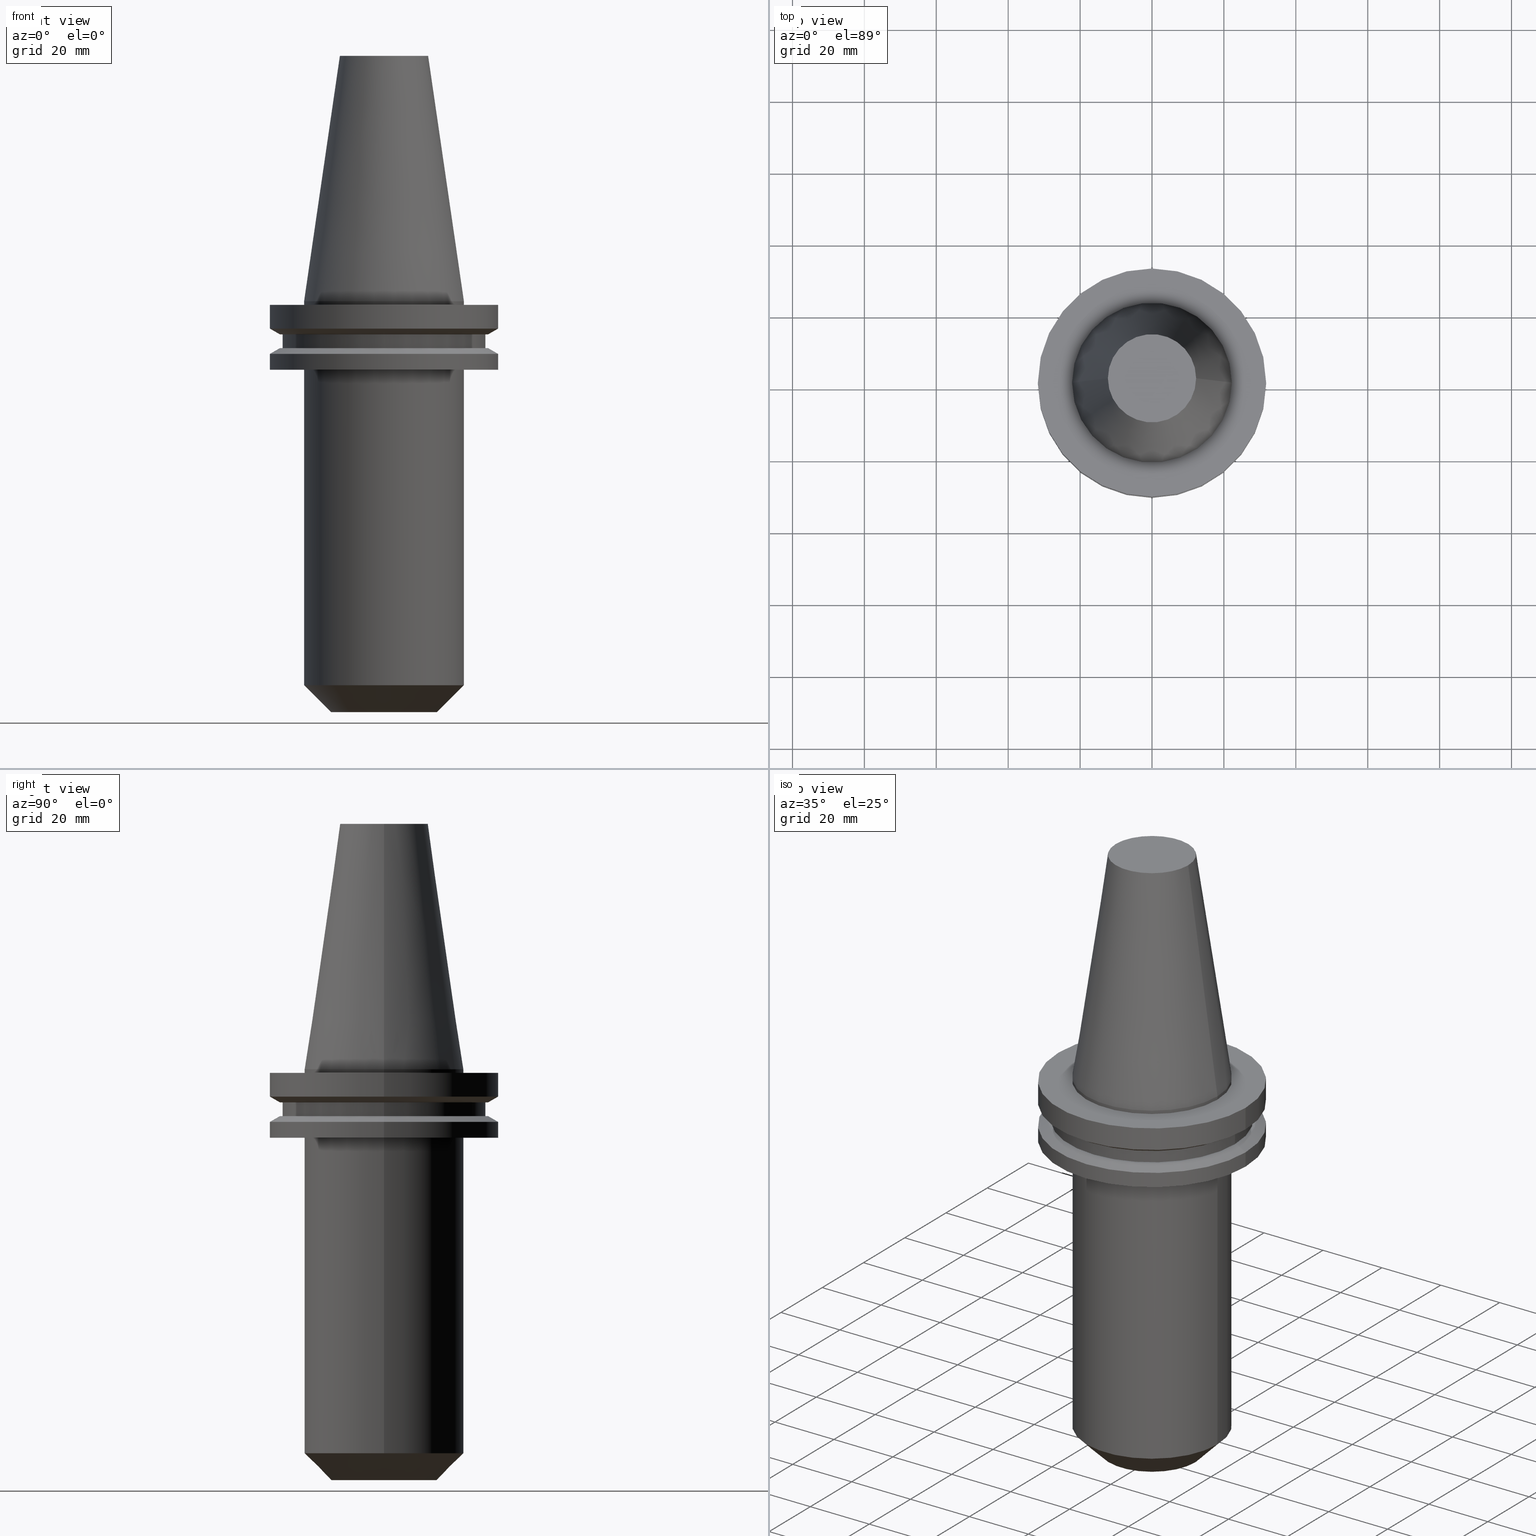
[diagram: canonical four-view strip — front | top / right | iso, engineering-drawing reading convention]
A machine part, canonical four-view strip (front | top / right | iso — engineering-drawing reading convention). The complete STEP part file that produces these views, byte-faithful:
ISO-10303-21;
HEADER;
FILE_DESCRIPTION (( 'STEP AP203' ),
    '1' );
FILE_NAME ('BCV40-EM_750-4_5.STEP',
    '2022-02-23T14:49:50',
    ( '' ),
    ( '' ),
    'SwSTEP 2.0',
    'SolidWorks 2021',
    '' );
FILE_SCHEMA (( 'CONFIG_CONTROL_DESIGN' ));
ENDSEC;

DATA;
#1 = AXIS2_PLACEMENT_3D ( 'NONE', #332, #454, #138 ) ;
#2 = SECURITY_CLASSIFICATION ( '', '', #561 ) ;
#3 = CYLINDRICAL_SURFACE ( 'NONE', #145, 22.22500000000000142 ) ;
#4 = CIRCLE ( 'NONE', #27, 22.22500000000000142 ) ;
#5 = ORIENTED_EDGE ( 'NONE', *, *, #616, .T. ) ;
#6 = APPLICATION_CONTEXT ( 'configuration controlled 3d designs of mechanical parts and assemblies' ) ;
#7 = DIRECTION ( 'NONE',  ( 1.000000000000000000, 0.000000000000000000, 0.000000000000000000 ) ) ;
#8 = FACE_OUTER_BOUND ( 'NONE', #426, .T. ) ;
#9 = CYLINDRICAL_SURFACE ( 'NONE', #76, 22.22500000000000142 ) ;
#10 = CARTESIAN_POINT ( 'NONE',  ( -28.97919780457008088, 0.000000000000000000, -13.05499999999999794 ) ) ;
#11 = ADVANCED_FACE ( 'NONE', ( #686 ), #313, .T. ) ;
#12 = AXIS2_PLACEMENT_3D ( 'NONE', #334, #672, #137 ) ;
#13 = AXIS2_PLACEMENT_3D ( 'NONE', #687, #151, #218 ) ;
#14 = ADVANCED_FACE ( 'NONE', ( #627 ), #3, .T. ) ;
#15 = VECTOR ( 'NONE', #458, 1000.000000000000000 ) ;
#16 = DIRECTION ( 'NONE',  ( -0.000000000000000000, -0.000000000000000000, 1.000000000000000000 ) ) ;
#17 = CARTESIAN_POINT ( 'NONE',  ( 0.000000000000000000, 0.000000000000000000, -35.04999999999999716 ) ) ;
#18 = CARTESIAN_POINT ( 'NONE',  ( 0.000000000000000000, 0.000000000000000000, 68.25000000000000000 ) ) ;
#19 = DIRECTION ( 'NONE',  ( 1.000000000000000000, 0.000000000000000000, 0.000000000000000000 ) ) ;
#20 = DIRECTION ( 'NONE',  ( 0.8660254037844387076, 1.060575238724906915E-16, -0.4999999999999998890 ) ) ;
#21 = DIRECTION ( 'NONE',  ( 0.000000000000000000, 0.000000000000000000, -1.000000000000000000 ) ) ;
#22 = ORIENTED_EDGE ( 'NONE', *, *, #262, .T. ) ;
#23 = VECTOR ( 'NONE', #459, 999.9999999999998863 ) ;
#24 = DIRECTION ( 'NONE',  ( -0.000000000000000000, -0.000000000000000000, 1.000000000000000000 ) ) ;
#25 = ORIENTED_EDGE ( 'NONE', *, *, #202, .T. ) ;
#26 = CYLINDRICAL_SURFACE ( 'NONE', #479, 9.525000000000002132 ) ;
#27 = AXIS2_PLACEMENT_3D ( 'NONE', #139, #378, #729 ) ;
#28 = PERSON_AND_ORGANIZATION_ROLE ( 'classification_officer' ) ;
#29 = CARTESIAN_POINT ( 'NONE',  ( 0.000000000000000000, 0.000000000000000000, -7.605276606597335842 ) ) ;
#30 = ORIENTED_EDGE ( 'NONE', *, *, #221, .F. ) ;
#31 = CARTESIAN_POINT ( 'NONE',  ( -31.75000000000000000, 3.888253587292846476E-15, -1.000000000000000888 ) ) ;
#32 = ORIENTED_EDGE ( 'NONE', *, *, #260, .F. ) ;
#33 = DIRECTION ( 'NONE',  ( 0.000000000000000000, 0.000000000000000000, -1.000000000000000000 ) ) ;
#34 = EDGE_CURVE ( 'NONE', #694, #284, #198, .T. ) ;
#35 = LINE ( 'NONE', #599, #562 ) ;
#36 = AXIS2_PLACEMENT_3D ( 'NONE', #29, #693, #160 ) ;
#37 = ORIENTED_EDGE ( 'NONE', *, *, #290, .F. ) ;
#38 = LOCAL_TIME ( 8, 49, 50.00000000000000000, #211 ) ;
#39 = DIRECTION ( 'NONE',  ( -0.000000000000000000, -0.000000000000000000, 1.000000000000000000 ) ) ;
#40 = VECTOR ( 'NONE', #742, 1000.000000000000000 ) ;
#41 = DIRECTION ( 'NONE',  ( -0.000000000000000000, -0.000000000000000000, 1.000000000000000000 ) ) ;
#42 = ORIENTED_EDGE ( 'NONE', *, *, #70, .F. ) ;
#43 = DIRECTION ( 'NONE',  ( -0.000000000000000000, -0.000000000000000000, 1.000000000000000000 ) ) ;
#44 = PLANE ( 'NONE',  #514 ) ;
#45 = CARTESIAN_POINT ( 'NONE',  ( 0.000000000000000000, 0.000000000000000000, -13.05499999999999794 ) ) ;
#46 = CARTESIAN_POINT ( 'NONE',  ( 0.000000000000000000, 0.000000000000000000, -13.05499999999999794 ) ) ;
#47 = ORIENTED_EDGE ( 'NONE', *, *, #646, .T. ) ;
#48 = ORIENTED_EDGE ( 'NONE', *, *, #194, .T. ) ;
#49 = CARTESIAN_POINT ( 'NONE',  ( 22.22500000000000142, 0.000000000000000000, 68.25000000000000000 ) ) ;
#50 = CARTESIAN_POINT ( 'NONE',  ( 14.72499999999998721, 0.000000000000000000, -114.2999999999999829 ) ) ;
#51 = CARTESIAN_POINT ( 'NONE',  ( 9.525000000000002132, 0.000000000000000000, 0.000000000000000000 ) ) ;
#52 = CARTESIAN_POINT ( 'NONE',  ( 0.000000000000000000, 0.000000000000000000, 0.000000000000000000 ) ) ;
#53 = ORIENTED_EDGE ( 'NONE', *, *, #725, .F. ) ;
#54 = DIRECTION ( 'NONE',  ( 1.000000000000000000, 0.000000000000000000, 0.000000000000000000 ) ) ;
#55 = CIRCLE ( 'NONE', #461, 12.27178102086201150 ) ;
#56 = CIRCLE ( 'NONE', #754, 28.17999999999999972 ) ;
#57 = VERTEX_POINT ( 'NONE', #84 ) ;
#58 = PLANE ( 'NONE',  #665 ) ;
#59 = ADVANCED_FACE ( 'NONE', ( #570 ), #429, .T. ) ;
#60 = EDGE_LOOP ( 'NONE', ( #506, #487, #392, #30 ) ) ;
#61 = ORIENTED_EDGE ( 'NONE', *, *, #495, .T. ) ;
#62 = CARTESIAN_POINT ( 'NONE',  ( -22.22500000000000142, 0.000000000000000000, 0.000000000000000000 ) ) ;
#63 = VERTEX_POINT ( 'NONE', #379 ) ;
#64 = ORIENTED_EDGE ( 'NONE', *, *, #65, .T. ) ;
#65 = EDGE_CURVE ( 'NONE', #248, #524, #175, .T. ) ;
#66 = VECTOR ( 'NONE', #85, 1000.000000000000000 ) ;
#67 = PLANE ( 'NONE',  #751 ) ;
#68 = EDGE_CURVE ( 'NONE', #515, #147, #80, .T. ) ;
#69 = CYLINDRICAL_SURFACE ( 'NONE', #722, 31.75000000000000000 ) ;
#70 = EDGE_CURVE ( 'NONE', #412, #685, #696, .T. ) ;
#71 = DIRECTION ( 'NONE',  ( 1.000000000000000000, 0.000000000000000000, 0.000000000000000000 ) ) ;
#72 = EDGE_CURVE ( 'NONE', #284, #694, #766, .T. ) ;
#73 = FACE_BOUND ( 'NONE', #704, .T. ) ;
#74 = FACE_OUTER_BOUND ( 'NONE', #234, .T. ) ;
#75 = DIRECTION ( 'NONE',  ( -0.000000000000000000, -0.000000000000000000, 1.000000000000000000 ) ) ;
#76 = AXIS2_PLACEMENT_3D ( 'NONE', #558, #626, #324 ) ;
#77 = PERSON_AND_ORGANIZATION ( #576, #291 ) ;
#78 = AXIS2_PLACEMENT_3D ( 'NONE', #149, #204, #718 ) ;
#79 = DIRECTION ( 'NONE',  ( 1.000000000000000000, 0.000000000000000000, 0.000000000000000000 ) ) ;
#80 = LINE ( 'NONE', #330, #633 ) ;
#81 = COORDINATED_UNIVERSAL_TIME_OFFSET ( 6, 0, .BEHIND. ) ;
#82 = DIRECTION ( 'NONE',  ( -0.000000000000000000, -0.000000000000000000, 1.000000000000000000 ) ) ;
#83 = EDGE_LOOP ( 'NONE', ( #359, #123 ) ) ;
#84 = CARTESIAN_POINT ( 'NONE',  ( -28.17999999999999972, 3.451054679997241634E-15, -9.204999999999991189 ) ) ;
#85 = DIRECTION ( 'NONE',  ( -0.000000000000000000, -0.000000000000000000, 1.000000000000000000 ) ) ;
#86 = EDGE_LOOP ( 'NONE', ( #117, #484 ) ) ;
#87 = MECHANICAL_CONTEXT ( 'NONE', #6, 'mechanical' ) ;
#88 = CIRCLE ( 'NONE', #1, 31.75000000000000000 ) ;
#89 = CARTESIAN_POINT ( 'NONE',  ( 22.22500000000000142, 2.721777511104992849E-15, 0.000000000000000000 ) ) ;
#90 = LOCAL_TIME ( 8, 49, 50.00000000000000000, #201 ) ;
#91 = EDGE_LOOP ( 'NONE', ( #716, #518 ) ) ;
#92 = DIRECTION ( 'NONE',  ( 1.000000000000000000, 0.000000000000000000, 0.000000000000000000 ) ) ;
#93 = DIRECTION ( 'NONE',  ( 1.000000000000000000, 0.000000000000000000, 0.000000000000000000 ) ) ;
#94 = CARTESIAN_POINT ( 'NONE',  ( -31.75000000000000000, 3.888253587292846476E-15, -14.65472339340266572 ) ) ;
#95 = CARTESIAN_POINT ( 'NONE',  ( -28.97919780457007732, 3.718590885307660666E-15, -9.205000000000005400 ) ) ;
#96 = CARTESIAN_POINT ( 'NONE',  ( 28.17999999999999972, 0.000000000000000000, -9.204999999999991189 ) ) ;
#97 = CYLINDRICAL_SURFACE ( 'NONE', #237, 28.17999999999999972 ) ;
#98 = VERTEX_POINT ( 'NONE', #348 ) ;
#99 = APPROVAL ( #519, 'UNSPECIFIED' ) ;
#100 = FACE_OUTER_BOUND ( 'NONE', #186, .T. ) ;
#101 = CARTESIAN_POINT ( 'NONE',  ( 22.22500000000000142, 2.721777511104992849E-15, 0.000000000000000000 ) ) ;
#102 = CARTESIAN_POINT ( 'NONE',  ( 0.000000000000000000, 0.000000000000000000, -106.8000000000000114 ) ) ;
#103 = AXIS2_PLACEMENT_3D ( 'NONE', #45, #608, #546 ) ;
#104 = LOCAL_TIME ( 8, 49, 50.00000000000000000, #739 ) ;
#105 = VERTEX_POINT ( 'NONE', #588 ) ;
#106 = ORIENTED_EDGE ( 'NONE', *, *, #262, .F. ) ;
#107 = DIRECTION ( 'NONE',  ( 1.000000000000000000, 0.000000000000000000, 0.000000000000000000 ) ) ;
#108 = DIRECTION ( 'NONE',  ( 1.000000000000000000, 0.000000000000000000, 0.000000000000000000 ) ) ;
#109 = EDGE_CURVE ( 'NONE', #524, #248, #530, .T. ) ;
#110 = DIRECTION ( 'NONE',  ( 0.000000000000000000, -0.000000000000000000, 1.000000000000000000 ) ) ;
#111 = APPLICATION_CONTEXT ( 'configuration controlled 3d designs of mechanical parts and assemblies' ) ;
#112 = VERTEX_POINT ( 'NONE', #373 ) ;
#113 = ORIENTED_EDGE ( 'NONE', *, *, #380, .T. ) ;
#114 = CARTESIAN_POINT ( 'NONE',  ( 0.000000000000000000, 31.74999999999999289, -19.04999999999999716 ) ) ;
#115 = ADVANCED_FACE ( 'NONE', ( #623 ), #69, .T. ) ;
#116 = CC_DESIGN_PERSON_AND_ORGANIZATION_ASSIGNMENT ( #629, #731, ( #465 ) ) ;
#117 = ORIENTED_EDGE ( 'NONE', *, *, #336, .F. ) ;
#118 = DIRECTION ( 'NONE',  ( -0.000000000000000000, -0.000000000000000000, 1.000000000000000000 ) ) ;
#119 = CIRCLE ( 'NONE', #713, 14.72499999999998721 ) ;
#120 = CONICAL_SURFACE ( 'NONE', #604, 14.72499999999998721, 0.7853981633974507215 ) ;
#121 = CIRCLE ( 'NONE', #446, 22.22500000000000142 ) ;
#122 = AXIS2_PLACEMENT_3D ( 'NONE', #467, #43, #294 ) ;
#123 = ORIENTED_EDGE ( 'NONE', *, *, #177, .F. ) ;
#124 = ORIENTED_EDGE ( 'NONE', *, *, #397, .F. ) ;
#125 = DIRECTION ( 'NONE',  ( 1.000000000000000000, 0.000000000000000000, 0.000000000000000000 ) ) ;
#126 = EDGE_CURVE ( 'NONE', #637, #181, #4, .T. ) ;
#127 = ORIENTED_EDGE ( 'NONE', *, *, #441, .F. ) ;
#128 = ORIENTED_EDGE ( 'NONE', *, *, #279, .T. ) ;
#129 =( LENGTH_UNIT ( ) NAMED_UNIT ( * ) SI_UNIT ( .MILLI., .METRE. ) );
#130 = CARTESIAN_POINT ( 'NONE',  ( -14.72499999999998721, 1.803292411744476082E-15, -114.2999999999999829 ) ) ;
#131 = AXIS2_PLACEMENT_3D ( 'NONE', #299, #606, #108 ) ;
#132 = CC_DESIGN_SECURITY_CLASSIFICATION ( #2, ( #491 ) ) ;
#133 = DIRECTION ( 'NONE',  ( -0.000000000000000000, -0.000000000000000000, 1.000000000000000000 ) ) ;
#134 = ADVANCED_FACE ( 'NONE', ( #74 ), #563, .T. ) ;
#135 = ADVANCED_FACE ( 'NONE', ( #384 ), #391, .F. ) ;
#136 = CARTESIAN_POINT ( 'NONE',  ( -28.17999999999999972, 3.451054679997241634E-15, 68.25000000000000000 ) ) ;
#137 = DIRECTION ( 'NONE',  ( 1.000000000000000000, 0.000000000000000000, 0.000000000000000000 ) ) ;
#138 = DIRECTION ( 'NONE',  ( 1.000000000000000000, 0.000000000000000000, 0.000000000000000000 ) ) ;
#139 = CARTESIAN_POINT ( 'NONE',  ( 0.000000000000000000, 0.000000000000000000, 0.000000000000000000 ) ) ;
#140 = ADVANCED_FACE ( 'NONE', ( #497 ), #26, .F. ) ;
#141 = DIRECTION ( 'NONE',  ( 1.000000000000000000, 0.000000000000000000, 0.000000000000000000 ) ) ;
#142 = CIRCLE ( 'NONE', #589, 28.17999999999999972 ) ;
#143 = LOCAL_TIME ( 8, 49, 50.00000000000000000, #81 ) ;
#144 = MANIFOLD_SOLID_BREP ( 'EM', #415 ) ;
#145 = AXIS2_PLACEMENT_3D ( 'NONE', #252, #496, #387 ) ;
#146 = CARTESIAN_POINT ( 'NONE',  ( 0.000000000000000000, 0.000000000000000000, 68.25000000000000000 ) ) ;
#147 = VERTEX_POINT ( 'NONE', #691 ) ;
#148 = DIRECTION ( 'NONE',  ( 0.000000000000000000, 0.000000000000000000, -1.000000000000000000 ) ) ;
#149 = CARTESIAN_POINT ( 'NONE',  ( 0.000000000000000000, 0.000000000000000000, -19.04999999999999716 ) ) ;
#150 = EDGE_CURVE ( 'NONE', #272, #368, #156, .T. ) ;
#151 = DIRECTION ( 'NONE',  ( -0.000000000000000000, -0.000000000000000000, 1.000000000000000000 ) ) ;
#152 = ORIENTED_EDGE ( 'NONE', *, *, #380, .F. ) ;
#153 = DIRECTION ( 'NONE',  ( 1.000000000000000000, 0.000000000000000000, 0.000000000000000000 ) ) ;
#154 = CARTESIAN_POINT ( 'NONE',  ( 0.000000000000000000, 0.000000000000000000, -9.205000000000005400 ) ) ;
#155 = VERTEX_POINT ( 'NONE', #95 ) ;
#156 = LINE ( 'NONE', #651, #40 ) ;
#157 = APPROVAL_STATUS ( 'not_yet_approved' ) ;
#158 = CIRCLE ( 'NONE', #513, 28.17999999999999972 ) ;
#159 = EDGE_CURVE ( 'NONE', #63, #637, #344, .T. ) ;
#160 = DIRECTION ( 'NONE',  ( 1.000000000000000000, 0.000000000000000000, 0.000000000000000000 ) ) ;
#161 = CONICAL_SURFACE ( 'NONE', #607, 22.22500000000000142, 0.1448138465474119174 ) ;
#162 = ADVANCED_FACE ( 'NONE', ( #100 ), #504, .T. ) ;
#163 = DIRECTION ( 'NONE',  ( -0.000000000000000000, -0.000000000000000000, 1.000000000000000000 ) ) ;
#164 = DIRECTION ( 'NONE',  ( -0.000000000000000000, -0.000000000000000000, 1.000000000000000000 ) ) ;
#165 = ORIENTED_EDGE ( 'NONE', *, *, #241, .F. ) ;
#166 = CARTESIAN_POINT ( 'NONE',  ( 9.525000000000002132, 0.000000000000000000, -35.04999999999999716 ) ) ;
#167 = ORIENTED_EDGE ( 'NONE', *, *, #203, .F. ) ;
#168 = CYLINDRICAL_SURFACE ( 'NONE', #131, 22.22500000000000142 ) ;
#169 = CARTESIAN_POINT ( 'NONE',  ( 0.000000000000000000, 0.000000000000000000, -35.04999999999999716 ) ) ;
#170 = ADVANCED_FACE ( 'NONE', ( #585 ), #161, .T. ) ;
#171 = ORIENTED_EDGE ( 'NONE', *, *, #397, .T. ) ;
#172 = CARTESIAN_POINT ( 'NONE',  ( 0.000000000000000000, 0.000000000000000000, -19.04999999999999716 ) ) ;
#173 = VECTOR ( 'NONE', #596, 1000.000000000000000 ) ;
#174 = AXIS2_PLACEMENT_3D ( 'NONE', #485, #490, #375 ) ;
#175 = CIRCLE ( 'NONE', #425, 9.525000000000002132 ) ;
#176 = ORIENTED_EDGE ( 'NONE', *, *, #159, .F. ) ;
#177 = EDGE_CURVE ( 'NONE', #661, #371, #56, .T. ) ;
#178 = CARTESIAN_POINT ( 'NONE',  ( 0.000000000000000000, 28.17999999999999972, -13.05499999999999794 ) ) ;
#179 = ORIENTED_EDGE ( 'NONE', *, *, #290, .T. ) ;
#180 = CARTESIAN_POINT ( 'NONE',  ( 28.17999999999999972, 0.000000000000000000, 68.25000000000000000 ) ) ;
#181 = VERTEX_POINT ( 'NONE', #101 ) ;
#182 = CARTESIAN_POINT ( 'NONE',  ( 0.000000000000000000, 31.75000000000000000, -0.9999999999999995559 ) ) ;
#183 = AXIS2_PLACEMENT_3D ( 'NONE', #102, #118, #363 ) ;
#184 = AXIS2_PLACEMENT_3D ( 'NONE', #249, #501, #721 ) ;
#185 = DIRECTION ( 'NONE',  ( 1.000000000000000000, 0.000000000000000000, 0.000000000000000000 ) ) ;
#186 = EDGE_LOOP ( 'NONE', ( #670, #179, #711, #190 ) ) ;
#187 = ORIENTED_EDGE ( 'NONE', *, *, #362, .F. ) ;
#188 = FACE_OUTER_BOUND ( 'NONE', #488, .T. ) ;
#189 = CARTESIAN_POINT ( 'NONE',  ( -31.74999999999999289, 3.888253587292845687E-15, -19.04999999999999716 ) ) ;
#190 = ORIENTED_EDGE ( 'NONE', *, *, #532, .F. ) ;
#191 = CARTESIAN_POINT ( 'NONE',  ( 31.75000000000000000, 0.000000000000000000, 68.25000000000000000 ) ) ;
#192 = EDGE_CURVE ( 'NONE', #293, #615, #366, .T. ) ;
#193 = EDGE_CURVE ( 'NONE', #611, #452, #537, .T. ) ;
#194 = EDGE_CURVE ( 'NONE', #544, #105, #235, .T. ) ;
#195 = DIRECTION ( 'NONE',  ( 1.000000000000000000, 0.000000000000000000, 0.000000000000000000 ) ) ;
#196 = VECTOR ( 'NONE', #353, 1000.000000000000000 ) ;
#197 = AXIS2_PLACEMENT_3D ( 'NONE', #172, #358, #464 ) ;
#198 = CIRCLE ( 'NONE', #78, 31.74999999999999289 ) ;
#199 = DIRECTION ( 'NONE',  ( -0.000000000000000000, -0.000000000000000000, 1.000000000000000000 ) ) ;
#200 = DIRECTION ( 'NONE',  ( -0.000000000000000000, -0.000000000000000000, 1.000000000000000000 ) ) ;
#201 = COORDINATED_UNIVERSAL_TIME_OFFSET ( 6, 0, .BEHIND. ) ;
#202 = EDGE_CURVE ( 'NONE', #371, #661, #463, .T. ) ;
#203 = EDGE_CURVE ( 'NONE', #452, #421, #212, .T. ) ;
#204 = DIRECTION ( 'NONE',  ( -0.000000000000000000, -0.000000000000000000, 1.000000000000000000 ) ) ;
#205 = DATE_AND_TIME ( #744, #90 ) ;
#206 = DIRECTION ( 'NONE',  ( -1.000000000000000000, 0.000000000000000000, 0.000000000000000000 ) ) ;
#207 = CARTESIAN_POINT ( 'NONE',  ( 0.000000000000000000, 0.000000000000000000, 68.25000000000000000 ) ) ;
#208 = ORIENTED_EDGE ( 'NONE', *, *, #331, .T. ) ;
#209 = EDGE_CURVE ( 'NONE', #314, #544, #565, .T. ) ;
#210 = VECTOR ( 'NONE', #450, 1000.000000000000000 ) ;
#211 = COORDINATED_UNIVERSAL_TIME_OFFSET ( 6, 0, .BEHIND. ) ;
#212 = CIRCLE ( 'NONE', #555, 31.75000000000000000 ) ;
#213 = CC_DESIGN_PERSON_AND_ORGANIZATION_ASSIGNMENT ( #261, #28, ( #2 ) ) ;
#214 = DIRECTION ( 'NONE',  ( 1.000000000000000000, 0.000000000000000000, 0.000000000000000000 ) ) ;
#215 = VERTEX_POINT ( 'NONE', #96 ) ;
#216 = ORIENTED_EDGE ( 'NONE', *, *, #550, .T. ) ;
#217 = DATE_AND_TIME ( #505, #104 ) ;
#218 = DIRECTION ( 'NONE',  ( 1.000000000000000000, 0.000000000000000000, 0.000000000000000000 ) ) ;
#219 = ORIENTED_EDGE ( 'NONE', *, *, #241, .T. ) ;
#220 = SHAPE_DEFINITION_REPRESENTATION ( #282, #492 ) ;
#221 = EDGE_CURVE ( 'NONE', #412, #181, #522, .T. ) ;
#222 = DIRECTION ( 'NONE',  ( 1.000000000000000000, 0.000000000000000000, 0.000000000000000000 ) ) ;
#223 = ORIENTED_EDGE ( 'NONE', *, *, #203, .T. ) ;
#224 = DIRECTION ( 'NONE',  ( -0.000000000000000000, -0.000000000000000000, 1.000000000000000000 ) ) ;
#225 = VECTOR ( 'NONE', #133, 1000.000000000000000 ) ;
#226 = VECTOR ( 'NONE', #763, 1000.000000000000000 ) ;
#227 = DIRECTION ( 'NONE',  ( -0.000000000000000000, -0.000000000000000000, 1.000000000000000000 ) ) ;
#228 = FACE_BOUND ( 'NONE', #247, .T. ) ;
#229 = DIRECTION ( 'NONE',  ( 1.000000000000000000, 0.000000000000000000, 0.000000000000000000 ) ) ;
#230 = ORIENTED_EDGE ( 'NONE', *, *, #473, .F. ) ;
#231 = ORIENTED_EDGE ( 'NONE', *, *, #616, .F. ) ;
#232 = CARTESIAN_POINT ( 'NONE',  ( 0.000000000000000000, 0.000000000000000000, -106.8000000000000114 ) ) ;
#233 = CARTESIAN_POINT ( 'NONE',  ( 0.000000000000000000, 22.22499999999999787, -35.04999999999999716 ) ) ;
#234 = EDGE_LOOP ( 'NONE', ( #356, #48, #548, #419 ) ) ;
#235 = LINE ( 'NONE', #286, #327 ) ;
#236 = CARTESIAN_POINT ( 'NONE',  ( 0.000000000000000000, 0.000000000000000000, 68.25000000000000000 ) ) ;
#237 = AXIS2_PLACEMENT_3D ( 'NONE', #236, #242, #705 ) ;
#238 = CIRCLE ( 'NONE', #424, 9.525000000000000355 ) ;
#239 = AXIS2_PLACEMENT_3D ( 'NONE', #614, #551, #442 ) ;
#240 = EDGE_LOOP ( 'NONE', ( #223, #61, #231, #521 ) ) ;
#241 = EDGE_CURVE ( 'NONE', #685, #412, #318, .T. ) ;
#242 = DIRECTION ( 'NONE',  ( -0.000000000000000000, -0.000000000000000000, 1.000000000000000000 ) ) ;
#243 = LINE ( 'NONE', #51, #173 ) ;
#244 = ORIENTED_EDGE ( 'NONE', *, *, #246, .T. ) ;
#245 = CARTESIAN_POINT ( 'NONE',  ( -22.22500000000000142, 2.721777511104992849E-15, -1.000000000000000888 ) ) ;
#246 = EDGE_CURVE ( 'NONE', #215, #57, #142, .T. ) ;
#247 = EDGE_LOOP ( 'NONE', ( #681, #47 ) ) ;
#248 = VERTEX_POINT ( 'NONE', #166 ) ;
#249 = CARTESIAN_POINT ( 'NONE',  ( 0.000000000000000000, 0.000000000000000000, -114.2999999999999829 ) ) ;
#250 = CIRCLE ( 'NONE', #289, 31.75000000000000000 ) ;
#251 = AXIS2_PLACEMENT_3D ( 'NONE', #617, #199, #125 ) ;
#252 = CARTESIAN_POINT ( 'NONE',  ( 0.000000000000000000, 0.000000000000000000, 68.25000000000000000 ) ) ;
#253 =( NAMED_UNIT ( * ) PLANE_ANGLE_UNIT ( ) SI_UNIT ( $, .RADIAN. ) );
#254 = CARTESIAN_POINT ( 'NONE',  ( 31.74999999999999289, 0.000000000000000000, -19.04999999999999716 ) ) ;
#255 = EDGE_CURVE ( 'NONE', #762, #248, #243, .T. ) ;
#256 = CYLINDRICAL_SURFACE ( 'NONE', #259, 31.75000000000000000 ) ;
#257 = DIRECTION ( 'NONE',  ( -0.000000000000000000, -0.000000000000000000, 1.000000000000000000 ) ) ;
#258 = VECTOR ( 'NONE', #740, 1000.000000000000000 ) ;
#259 = AXIS2_PLACEMENT_3D ( 'NONE', #771, #675, #195 ) ;
#260 = EDGE_CURVE ( 'NONE', #272, #515, #674, .T. ) ;
#261 = PERSON_AND_ORGANIZATION ( #576, #291 ) ;
#262 = EDGE_CURVE ( 'NONE', #57, #215, #158, .T. ) ;
#263 = DIRECTION ( 'NONE',  ( 1.000000000000000000, 0.000000000000000000, 0.000000000000000000 ) ) ;
#264 = ORIENTED_EDGE ( 'NONE', *, *, #620, .T. ) ;
#265 = CARTESIAN_POINT ( 'NONE',  ( 14.72499999999998721, 0.000000000000000000, -114.2999999999999829 ) ) ;
#266 = ADVANCED_FACE ( 'NONE', ( #469, #297 ), #760, .F. ) ;
#267 = CARTESIAN_POINT ( 'NONE',  ( 0.000000000000000000, 0.000000000000000000, -1.000000000000000888 ) ) ;
#268 = UNCERTAINTY_MEASURE_WITH_UNIT (LENGTH_MEASURE( 1.000000000000000082E-05 ), #129, 'distance_accuracy_value', 'NONE');
#269 = CARTESIAN_POINT ( 'NONE',  ( 22.22500000000000142, 0.000000000000000000, -1.000000000000000888 ) ) ;
#270 = EDGE_LOOP ( 'NONE', ( #455, #600 ) ) ;
#271 = ADVANCED_FACE ( 'NONE', ( #434 ), #9, .T. ) ;
#272 = VERTEX_POINT ( 'NONE', #10 ) ;
#273 = APPLICATION_PROTOCOL_DEFINITION ( 'international standard', 'config_control_design', 1994, #6 ) ;
#274 = AXIS2_PLACEMENT_3D ( 'NONE', #752, #227, #92 ) ;
#275 = DIRECTION ( 'NONE',  ( -0.000000000000000000, -0.000000000000000000, 1.000000000000000000 ) ) ;
#276 = EDGE_LOOP ( 'NONE', ( #37, #730, #402, #301 ) ) ;
#277 = CARTESIAN_POINT ( 'NONE',  ( 0.000000000000000000, 0.000000000000000000, 0.000000000000000000 ) ) ;
#278 = EDGE_CURVE ( 'NONE', #368, #147, #250, .T. ) ;
#279 = EDGE_CURVE ( 'NONE', #611, #155, #732, .T. ) ;
#280 = PERSON_AND_ORGANIZATION ( #576, #291 ) ;
#281 = CARTESIAN_POINT ( 'NONE',  ( 28.97919780457007732, 0.000000000000000000, -9.205000000000005400 ) ) ;
#282 = PRODUCT_DEFINITION_SHAPE ( 'NONE', 'NONE',  #465 ) ;
#283 = DIRECTION ( 'NONE',  ( -0.000000000000000000, -0.000000000000000000, 1.000000000000000000 ) ) ;
#284 = VERTEX_POINT ( 'NONE', #189 ) ;
#285 = CARTESIAN_POINT ( 'NONE',  ( 0.000000000000000000, 0.000000000000000000, -114.2999999999999829 ) ) ;
#286 = CARTESIAN_POINT ( 'NONE',  ( -22.22500000000000142, 2.721777511104992849E-15, 68.25000000000000000 ) ) ;
#287 = LINE ( 'NONE', #389, #645 ) ;
#288 = ORIENTED_EDGE ( 'NONE', *, *, #278, .F. ) ;
#289 = AXIS2_PLACEMENT_3D ( 'NONE', #556, #257, #493 ) ;
#290 = EDGE_CURVE ( 'NONE', #390, #544, #673, .T. ) ;
#291 = ORGANIZATION ( 'UNSPECIFIED', 'UNSPECIFIED', '' ) ;
#292 = FACE_OUTER_BOUND ( 'NONE', #593, .T. ) ;
#293 = VERTEX_POINT ( 'NONE', #31 ) ;
#294 = DIRECTION ( 'NONE',  ( 1.000000000000000000, 0.000000000000000000, 0.000000000000000000 ) ) ;
#295 = DIRECTION ( 'NONE',  ( 1.000000000000000000, 0.000000000000000000, 0.000000000000000000 ) ) ;
#296 = ADVANCED_FACE ( 'NONE', ( #745 ), #364, .T. ) ;
#297 = FACE_BOUND ( 'NONE', #270, .T. ) ;
#298 = ORIENTED_EDGE ( 'NONE', *, *, #646, .F. ) ;
#299 = CARTESIAN_POINT ( 'NONE',  ( 0.000000000000000000, 0.000000000000000000, 68.25000000000000000 ) ) ;
#300 = DIRECTION ( 'NONE',  ( 1.000000000000000000, 0.000000000000000000, 0.000000000000000000 ) ) ;
#301 = ORIENTED_EDGE ( 'NONE', *, *, #559, .F. ) ;
#302 = LINE ( 'NONE', #136, #462 ) ;
#303 = VECTOR ( 'NONE', #224, 1000.000000000000000 ) ;
#304 = APPROVAL_PERSON_ORGANIZATION ( #453, #99, #510 ) ;
#305 = EDGE_CURVE ( 'NONE', #685, #637, #287, .T. ) ;
#306 = ADVANCED_FACE ( 'NONE', ( #636 ), #120, .T. ) ;
#307 = EDGE_LOOP ( 'NONE', ( #460, #124, #663, #512 ) ) ;
#308 = LINE ( 'NONE', #180, #303 ) ;
#309 = ORIENTED_EDGE ( 'NONE', *, *, #193, .T. ) ;
#310 = ORIENTED_EDGE ( 'NONE', *, *, #473, .T. ) ;
#311 = ADVANCED_FACE ( 'NONE', ( #401 ), #410, .T. ) ;
#312 = LINE ( 'NONE', #191, #655 ) ;
#313 = CYLINDRICAL_SURFACE ( 'NONE', #239, 31.75000000000000000 ) ;
#314 = VERTEX_POINT ( 'NONE', #749 ) ;
#315 = DIRECTION ( 'NONE',  ( -0.000000000000000000, -0.000000000000000000, 1.000000000000000000 ) ) ;
#316 = AXIS2_PLACEMENT_3D ( 'NONE', #723, #438, #678 ) ;
#317 = APPROVAL_PERSON_ORGANIZATION ( #77, #747, #571 ) ;
#318 = CIRCLE ( 'NONE', #736, 22.22500000000000142 ) ;
#319 = FACE_OUTER_BOUND ( 'NONE', #601, .T. ) ;
#320 = EDGE_CURVE ( 'NONE', #515, #272, #695, .T. ) ;
#321 = CARTESIAN_POINT ( 'NONE',  ( 0.000000000000000000, 0.000000000000000000, 0.000000000000000000 ) ) ;
#322 = DIRECTION ( 'NONE',  ( -0.000000000000000000, -0.000000000000000000, 1.000000000000000000 ) ) ;
#323 = VECTOR ( 'NONE', #472, 1000.000000000000000 ) ;
#324 = DIRECTION ( 'NONE',  ( 1.000000000000000000, 0.000000000000000000, 0.000000000000000000 ) ) ;
#325 = CIRCLE ( 'NONE', #197, 22.22500000000000142 ) ;
#326 = EDGE_LOOP ( 'NONE', ( #709, #310, #598, #338 ) ) ;
#327 = VECTOR ( 'NONE', #594, 1000.000000000000000 ) ;
#328 = APPROVAL_STATUS ( 'not_yet_approved' ) ;
#329 = DIRECTION ( 'NONE',  ( -0.000000000000000000, -0.000000000000000000, 1.000000000000000000 ) ) ;
#330 = CARTESIAN_POINT ( 'NONE',  ( 31.75000000000000000, 3.888253587292846476E-15, -14.65472339340266572 ) ) ;
#331 = EDGE_CURVE ( 'NONE', #634, #63, #579, .T. ) ;
#332 = CARTESIAN_POINT ( 'NONE',  ( 0.000000000000000000, 0.000000000000000000, -14.65472339340266572 ) ) ;
#333 = EDGE_LOOP ( 'NONE', ( #25, #264, #347, #582 ) ) ;
#334 = CARTESIAN_POINT ( 'NONE',  ( 0.000000000000000000, 0.000000000000000000, 68.25000000000000000 ) ) ;
#335 = PERSON_AND_ORGANIZATION_ROLE ( 'design_owner' ) ;
#336 = EDGE_CURVE ( 'NONE', #360, #390, #119, .T. ) ;
#337 = DIRECTION ( 'NONE',  ( -1.000000000000000000, 0.000000000000000000, 0.000000000000000000 ) ) ;
#338 = ORIENTED_EDGE ( 'NONE', *, *, #255, .F. ) ;
#339 = CARTESIAN_POINT ( 'NONE',  ( 0.000000000000000000, 0.000000000000000000, -9.204999999999991189 ) ) ;
#340 = APPROVAL_ROLE ( '' ) ;
#341 = CARTESIAN_POINT ( 'NONE',  ( 0.000000000000000000, 0.000000000000000000, -114.2999999999999829 ) ) ;
#342 = EDGE_LOOP ( 'NONE', ( #171, #208 ) ) ;
#343 = CARTESIAN_POINT ( 'NONE',  ( 0.000000000000000000, 0.000000000000000000, -114.2999999999999972 ) ) ;
#344 = LINE ( 'NONE', #525, #676 ) ;
#345 = DIRECTION ( 'NONE',  ( 1.000000000000000000, 0.000000000000000000, 0.000000000000000000 ) ) ;
#346 = CARTESIAN_POINT ( 'NONE',  ( -9.525000000000002132, 1.166476076187854219E-15, -35.04999999999999716 ) ) ;
#347 = ORIENTED_EDGE ( 'NONE', *, *, #246, .F. ) ;
#348 = CARTESIAN_POINT ( 'NONE',  ( -9.525000000000000355, 1.166476076187854022E-15, -114.2999999999999972 ) ) ;
#349 = PRODUCT ( 'BCV40-EM_750-4_5', 'BCV40-EM_750-4_5', '', ( #87 ) ) ;
#350 = CONICAL_SURFACE ( 'NONE', #553, 28.97919780457007732, 1.047197551196598297 ) ;
#351 = AXIS2_PLACEMENT_3D ( 'NONE', #457, #577, #93 ) ;
#352 = ORIENTED_EDGE ( 'NONE', *, *, #72, .F. ) ;
#353 = DIRECTION ( 'NONE',  ( 0.7071067811865492381, 0.000000000000000000, 0.7071067811865457964 ) ) ;
#354 = AXIS2_PLACEMENT_3D ( 'NONE', #207, #16, #263 ) ;
#355 = PRODUCT_RELATED_PRODUCT_CATEGORY ( 'detail', '', ( #349 ) ) ;
#356 = ORIENTED_EDGE ( 'NONE', *, *, #209, .T. ) ;
#357 = ORIENTED_EDGE ( 'NONE', *, *, #439, .F. ) ;
#358 = DIRECTION ( 'NONE',  ( -0.000000000000000000, -0.000000000000000000, 1.000000000000000000 ) ) ;
#359 = ORIENTED_EDGE ( 'NONE', *, *, #202, .F. ) ;
#360 = VERTEX_POINT ( 'NONE', #265 ) ;
#361 = CARTESIAN_POINT ( 'NONE',  ( 31.75000000000000000, 0.000000000000000000, -1.000000000000000888 ) ) ;
#362 = EDGE_CURVE ( 'NONE', #155, #421, #383, .T. ) ;
#363 = DIRECTION ( 'NONE',  ( 1.000000000000000000, 0.000000000000000000, 0.000000000000000000 ) ) ;
#364 = CONICAL_SURFACE ( 'NONE', #526, 28.97919780457007732, 1.047197551196598297 ) ;
#365 = CIRCLE ( 'NONE', #684, 31.75000000000000000 ) ;
#366 = CIRCLE ( 'NONE', #448, 31.75000000000000000 ) ;
#367 = EDGE_LOOP ( 'NONE', ( #726, #406 ) ) ;
#368 = VERTEX_POINT ( 'NONE', #94 ) ;
#369 = CARTESIAN_POINT ( 'NONE',  ( 9.525000000000000355, 0.000000000000000000, -114.2999999999999972 ) ) ;
#370 = ORIENTED_EDGE ( 'NONE', *, *, #279, .F. ) ;
#371 = VERTEX_POINT ( 'NONE', #572 ) ;
#372 = FACE_OUTER_BOUND ( 'NONE', #597, .T. ) ;
#373 = CARTESIAN_POINT ( 'NONE',  ( 22.22500000000000142, 0.000000000000000000, -19.04999999999999716 ) ) ;
#374 = AXIS2_PLACEMENT_3D ( 'NONE', #267, #575, #610 ) ;
#375 = DIRECTION ( 'NONE',  ( 1.000000000000000000, 0.000000000000000000, 0.000000000000000000 ) ) ;
#376 = ADVANCED_FACE ( 'NONE', ( #394 ), #720, .T. ) ;
#377 = CARTESIAN_POINT ( 'NONE',  ( 0.000000000000000000, 0.000000000000000000, -114.2999999999999972 ) ) ;
#378 = DIRECTION ( 'NONE',  ( -0.000000000000000000, -0.000000000000000000, 1.000000000000000000 ) ) ;
#379 = CARTESIAN_POINT ( 'NONE',  ( -12.27178102086201150, 0.000000000000000000, 68.25000000000000000 ) ) ;
#380 = EDGE_CURVE ( 'NONE', #155, #611, #422, .T. ) ;
#381 = PERSON_AND_ORGANIZATION ( #576, #291 ) ;
#382 = CC_DESIGN_DATE_AND_TIME_ASSIGNMENT ( #217, #724, ( #2 ) ) ;
#383 = LINE ( 'NONE', #444, #258 ) ;
#384 = FACE_OUTER_BOUND ( 'NONE', #342, .T. ) ;
#385 = AXIS2_PLACEMENT_3D ( 'NONE', #640, #21, #337 ) ;
#386 = LOCAL_TIME ( 8, 49, 50.00000000000000000, #400 ) ;
#387 = DIRECTION ( 'NONE',  ( 1.000000000000000000, 0.000000000000000000, 0.000000000000000000 ) ) ;
#388 = AXIS2_PLACEMENT_3D ( 'NONE', #169, #408, #19 ) ;
#389 = CARTESIAN_POINT ( 'NONE',  ( -22.22500000000000142, 2.721777511104992849E-15, 68.25000000000000000 ) ) ;
#390 = VERTEX_POINT ( 'NONE', #520 ) ;
#391 = PLANE ( 'NONE',  #494 ) ;
#392 = ORIENTED_EDGE ( 'NONE', *, *, #743, .F. ) ;
#393 = DATE_TIME_ROLE ( 'creation_date' ) ;
#394 = FACE_OUTER_BOUND ( 'NONE', #480, .T. ) ;
#395 = DATE_AND_TIME ( #568, #143 ) ;
#396 = CARTESIAN_POINT ( 'NONE',  ( -31.75000000000000000, 3.888253587292846476E-15, -7.605276606597335842 ) ) ;
#397 = EDGE_CURVE ( 'NONE', #63, #634, #55, .T. ) ;
#398 = EDGE_LOOP ( 'NONE', ( #42, #165 ) ) ;
#399 = AXIS2_PLACEMENT_3D ( 'NONE', #18, #689, #79 ) ;
#400 = COORDINATED_UNIVERSAL_TIME_OFFSET ( 6, 0, .BEHIND. ) ;
#401 = FACE_OUTER_BOUND ( 'NONE', #657, .T. ) ;
#402 = ORIENTED_EDGE ( 'NONE', *, *, #532, .T. ) ;
#403 = LINE ( 'NONE', #50, #196 ) ;
#404 = ORIENTED_EDGE ( 'NONE', *, *, #221, .T. ) ;
#405 = EDGE_CURVE ( 'NONE', #147, #368, #88, .T. ) ;
#406 = ORIENTED_EDGE ( 'NONE', *, *, #109, .F. ) ;
#407 = CARTESIAN_POINT ( 'NONE',  ( -22.22500000000000142, 2.721777511104992849E-15, -106.8000000000000114 ) ) ;
#408 = DIRECTION ( 'NONE',  ( -0.000000000000000000, -0.000000000000000000, 1.000000000000000000 ) ) ;
#409 = DIRECTION ( 'NONE',  ( -1.000000000000000000, 0.000000000000000000, 0.000000000000000000 ) ) ;
#410 = CONICAL_SURFACE ( 'NONE', #765, 22.22500000000000142, 0.1448138465474119174 ) ;
#411 = DESIGN_CONTEXT ( 'detailed design', #111, 'design' ) ;
#412 = VERTEX_POINT ( 'NONE', #269 ) ;
#413 = DIRECTION ( 'NONE',  ( -0.000000000000000000, -0.000000000000000000, 1.000000000000000000 ) ) ;
#414 = FACE_OUTER_BOUND ( 'NONE', #773, .T. ) ;
#415 = CLOSED_SHELL ( 'NONE', ( #162, #140, #271, #115, #296, #59, #376, #658, #134, #311, #170, #135, #486, #481, #11, #624, #603, #500, #737, #475, #417, #628, #14, #767, #266, #306, #567 ) ) ;
#416 = CARTESIAN_POINT ( 'NONE',  ( 0.000000000000000000, 9.525000000000000355, -114.2999999999999829 ) ) ;
#417 = ADVANCED_FACE ( 'NONE', ( #511 ), #569, .T. ) ;
#418 = DIRECTION ( 'NONE',  ( 0.000000000000000000, 0.000000000000000000, -1.000000000000000000 ) ) ;
#419 = ORIENTED_EDGE ( 'NONE', *, *, #540, .F. ) ;
#420 = DIRECTION ( 'NONE',  ( 1.000000000000000000, 0.000000000000000000, 0.000000000000000000 ) ) ;
#421 = VERTEX_POINT ( 'NONE', #396 ) ;
#422 = CIRCLE ( 'NONE', #654, 28.97919780457007732 ) ;
#423 = DIRECTION ( 'NONE',  ( 1.000000000000000000, 0.000000000000000000, 0.000000000000000000 ) ) ;
#424 = AXIS2_PLACEMENT_3D ( 'NONE', #377, #712, #423 ) ;
#425 = AXIS2_PLACEMENT_3D ( 'NONE', #17, #75, #141 ) ;
#426 = EDGE_LOOP ( 'NONE', ( #230, #127, #701, #64 ) ) ;
#427 = EDGE_LOOP ( 'NONE', ( #53, #761, #552, #288 ) ) ;
#428 = DIRECTION ( 'NONE',  ( -0.000000000000000000, -0.000000000000000000, 1.000000000000000000 ) ) ;
#429 = CYLINDRICAL_SURFACE ( 'NONE', #12, 28.17999999999999972 ) ;
#430 =( NAMED_UNIT ( * ) SI_UNIT ( $, .STERADIAN. ) SOLID_ANGLE_UNIT ( ) );
#431 = PLANE ( 'NONE',  #174 ) ;
#432 = EDGE_CURVE ( 'NONE', #694, #147, #583, .T. ) ;
#433 = AXIS2_PLACEMENT_3D ( 'NONE', #321, #322, #7 ) ;
#434 = FACE_OUTER_BOUND ( 'NONE', #60, .T. ) ;
#435 = AXIS2_PLACEMENT_3D ( 'NONE', #285, #660, #345 ) ;
#436 = DIRECTION ( 'NONE',  ( 1.000000000000000000, 0.000000000000000000, 0.000000000000000000 ) ) ;
#437 = EDGE_CURVE ( 'NONE', #634, #181, #643, .T. ) ;
#438 = DIRECTION ( 'NONE',  ( -0.000000000000000000, -0.000000000000000000, 1.000000000000000000 ) ) ;
#439 = EDGE_CURVE ( 'NONE', #421, #452, #541, .T. ) ;
#440 = CARTESIAN_POINT ( 'NONE',  ( 31.75000000000000000, 0.000000000000000000, 68.25000000000000000 ) ) ;
#441 = EDGE_CURVE ( 'NONE', #762, #98, #489, .T. ) ;
#442 = DIRECTION ( 'NONE',  ( 1.000000000000000000, 0.000000000000000000, 0.000000000000000000 ) ) ;
#443 = APPROVAL_DATE_TIME ( #205, #99 ) ;
#444 = CARTESIAN_POINT ( 'NONE',  ( -28.97919780457007732, 3.548928183322474856E-15, -9.205000000000005400 ) ) ;
#445 = CARTESIAN_POINT ( 'NONE',  ( 0.000000000000000000, 12.27178102086201150, 68.25000000000000000 ) ) ;
#446 = AXIS2_PLACEMENT_3D ( 'NONE', #622, #428, #436 ) ;
#447 = ORIENTED_EDGE ( 'NONE', *, *, #620, .F. ) ;
#448 = AXIS2_PLACEMENT_3D ( 'NONE', #539, #41, #229 ) ;
#449 = APPROVAL_DATE_TIME ( #395, #747 ) ;
#450 = DIRECTION ( 'NONE',  ( -0.7071067811865492381, 8.659560562354953812E-17, 0.7071067811865457964 ) ) ;
#451 = ORIENTED_EDGE ( 'NONE', *, *, #150, .T. ) ;
#452 = VERTEX_POINT ( 'NONE', #697 ) ;
#453 = PERSON_AND_ORGANIZATION ( #576, #291 ) ;
#454 = DIRECTION ( 'NONE',  ( -0.000000000000000000, -0.000000000000000000, 1.000000000000000000 ) ) ;
#455 = ORIENTED_EDGE ( 'NONE', *, *, #441, .T. ) ;
#456 = DIRECTION ( 'NONE',  ( -0.000000000000000000, -0.000000000000000000, 1.000000000000000000 ) ) ;
#457 = CARTESIAN_POINT ( 'NONE',  ( 0.000000000000000000, 0.000000000000000000, 0.000000000000000000 ) ) ;
#458 = DIRECTION ( 'NONE',  ( 0.8660254037844389297, 0.000000000000000000, 0.4999999999999995004 ) ) ;
#459 = DIRECTION ( 'NONE',  ( 0.1443082272672999711, 1.767266086135276757E-17, -0.9895327864921755756 ) ) ;
#460 = ORIENTED_EDGE ( 'NONE', *, *, #437, .F. ) ;
#461 = AXIS2_PLACEMENT_3D ( 'NONE', #146, #680, #631 ) ;
#462 = VECTOR ( 'NONE', #719, 1000.000000000000000 ) ;
#463 = CIRCLE ( 'NONE', #122, 28.17999999999999972 ) ;
#464 = DIRECTION ( 'NONE',  ( 1.000000000000000000, 0.000000000000000000, 0.000000000000000000 ) ) ;
#465 = PRODUCT_DEFINITION ( 'UNKNOWN', '', #491, #411 ) ;
#466 = CC_DESIGN_PERSON_AND_ORGANIZATION_ASSIGNMENT ( #679, #639, ( #491 ) ) ;
#467 = CARTESIAN_POINT ( 'NONE',  ( 0.000000000000000000, 0.000000000000000000, -13.05499999999999794 ) ) ;
#468 = LINE ( 'NONE', #702, #474 ) ;
#469 = FACE_OUTER_BOUND ( 'NONE', #86, .T. ) ;
#470 = ORIENTED_EDGE ( 'NONE', *, *, #194, .F. ) ;
#471 = ORIENTED_EDGE ( 'NONE', *, *, #432, .F. ) ;
#472 = DIRECTION ( 'NONE',  ( -0.000000000000000000, -0.000000000000000000, 1.000000000000000000 ) ) ;
#473 = EDGE_CURVE ( 'NONE', #98, #524, #35, .T. ) ;
#474 = VECTOR ( 'NONE', #759, 1000.000000000000000 ) ;
#475 = ADVANCED_FACE ( 'NONE', ( #755 ), #350, .T. ) ;
#476 = CC_DESIGN_APPROVAL ( #747, ( #491 ) ) ;
#477 = EDGE_LOOP ( 'NONE', ( #470, #757, #667, #298 ) ) ;
#478 = FACE_OUTER_BOUND ( 'NONE', #91, .T. ) ;
#479 = AXIS2_PLACEMENT_3D ( 'NONE', #277, #456, #153 ) ;
#480 = EDGE_LOOP ( 'NONE', ( #509, #703, #542, #573 ) ) ;
#481 = ADVANCED_FACE ( 'NONE', ( #292, #228 ), #58, .F. ) ;
#482 = DIRECTION ( 'NONE',  ( -0.000000000000000000, -0.000000000000000000, 1.000000000000000000 ) ) ;
#483 = CC_DESIGN_PERSON_AND_ORGANIZATION_ASSIGNMENT ( #580, #727, ( #491 ) ) ;
#484 = ORIENTED_EDGE ( 'NONE', *, *, #688, .F. ) ;
#485 = CARTESIAN_POINT ( 'NONE',  ( 0.000000000000000000, 28.97919780457007732, -9.204999999999996518 ) ) ;
#486 = ADVANCED_FACE ( 'NONE', ( #587 ), #168, .T. ) ;
#487 = ORIENTED_EDGE ( 'NONE', *, *, #305, .T. ) ;
#488 = EDGE_LOOP ( 'NONE', ( #533, #768, #738, #471 ) ) ;
#489 = CIRCLE ( 'NONE', #682, 9.525000000000000355 ) ;
#490 = DIRECTION ( 'NONE',  ( 0.000000000000000000, -0.000000000000000000, 1.000000000000000000 ) ) ;
#491 = PRODUCT_DEFINITION_FORMATION_WITH_SPECIFIED_SOURCE ( 'ANY', '', #349, .NOT_KNOWN. ) ;
#492 = ADVANCED_BREP_SHAPE_REPRESENTATION ( 'BCV40-EM_750-4_5', ( #144, #351 ), #632 ) ;
#493 = DIRECTION ( 'NONE',  ( 1.000000000000000000, 0.000000000000000000, 0.000000000000000000 ) ) ;
#494 = AXIS2_PLACEMENT_3D ( 'NONE', #445, #148, #574 ) ;
#495 = EDGE_CURVE ( 'NONE', #421, #293, #664, .T. ) ;
#496 = DIRECTION ( 'NONE',  ( -0.000000000000000000, -0.000000000000000000, 1.000000000000000000 ) ) ;
#497 = FACE_OUTER_BOUND ( 'NONE', #326, .T. ) ;
#498 = DIRECTION ( 'NONE',  ( -1.000000000000000000, 0.000000000000000000, 0.000000000000000000 ) ) ;
#499 = CARTESIAN_POINT ( 'NONE',  ( 0.000000000000000000, 0.000000000000000000, 68.25000000000000000 ) ) ;
#500 = ADVANCED_FACE ( 'NONE', ( #414 ), #97, .T. ) ;
#501 = DIRECTION ( 'NONE',  ( -0.000000000000000000, -0.000000000000000000, 1.000000000000000000 ) ) ;
#502 = CIRCLE ( 'NONE', #183, 22.22500000000000142 ) ;
#503 = CIRCLE ( 'NONE', #251, 22.22500000000000142 ) ;
#504 = CONICAL_SURFACE ( 'NONE', #435, 14.72499999999998721, 0.7853981633974507215 ) ;
#505 = CALENDAR_DATE ( 2022, 23, 2 ) ;
#506 = ORIENTED_EDGE ( 'NONE', *, *, #70, .T. ) ;
#507 = CALENDAR_DATE ( 2022, 23, 2 ) ;
#508 = DIRECTION ( 'NONE',  ( 1.000000000000000000, 0.000000000000000000, 0.000000000000000000 ) ) ;
#509 = ORIENTED_EDGE ( 'NONE', *, *, #320, .F. ) ;
#510 = APPROVAL_ROLE ( '' ) ;
#511 = FACE_OUTER_BOUND ( 'NONE', #735, .T. ) ;
#512 = ORIENTED_EDGE ( 'NONE', *, *, #126, .T. ) ;
#513 = AXIS2_PLACEMENT_3D ( 'NONE', #772, #39, #590 ) ;
#514 = AXIS2_PLACEMENT_3D ( 'NONE', #233, #535, #295 ) ;
#515 = VERTEX_POINT ( 'NONE', #662 ) ;
#516 = DATE_AND_TIME ( #648, #386 ) ;
#517 = CARTESIAN_POINT ( 'NONE',  ( 0.000000000000000000, 0.000000000000000000, 0.000000000000000000 ) ) ;
#518 = ORIENTED_EDGE ( 'NONE', *, *, #320, .T. ) ;
#519 = APPROVAL_STATUS ( 'not_yet_approved' ) ;
#520 = CARTESIAN_POINT ( 'NONE',  ( -14.72499999999998721, 2.262534961424734465E-15, -114.2999999999999829 ) ) ;
#521 = ORIENTED_EDGE ( 'NONE', *, *, #707, .F. ) ;
#522 = LINE ( 'NONE', #49, #226 ) ;
#523 = CARTESIAN_POINT ( 'NONE',  ( 0.000000000000000000, 0.000000000000000000, -9.205000000000005400 ) ) ;
#524 = VERTEX_POINT ( 'NONE', #346 ) ;
#525 = CARTESIAN_POINT ( 'NONE',  ( -22.22500000000000142, 0.000000000000000000, 0.000000000000000000 ) ) ;
#526 = AXIS2_PLACEMENT_3D ( 'NONE', #523, #24, #508 ) ;
#527 = DIRECTION ( 'NONE',  ( -0.000000000000000000, -0.000000000000000000, 1.000000000000000000 ) ) ;
#528 = APPROVAL ( #157, 'UNSPECIFIED' ) ;
#529 = APPROVAL_PERSON_ORGANIZATION ( #381, #528, #340 ) ;
#530 = CIRCLE ( 'NONE', #388, 9.525000000000002132 ) ;
#531 = CARTESIAN_POINT ( 'NONE',  ( 0.000000000000000000, 0.000000000000000000, -9.205000000000005400 ) ) ;
#532 = EDGE_CURVE ( 'NONE', #360, #314, #403, .T. ) ;
#533 = ORIENTED_EDGE ( 'NONE', *, *, #34, .T. ) ;
#534 = CARTESIAN_POINT ( 'NONE',  ( 0.000000000000000000, 0.000000000000000000, -7.605276606597335842 ) ) ;
#535 = DIRECTION ( 'NONE',  ( 0.000000000000000000, -0.000000000000000000, 1.000000000000000000 ) ) ;
#536 = ORIENTED_EDGE ( 'NONE', *, *, #707, .T. ) ;
#537 = LINE ( 'NONE', #281, #15 ) ;
#538 = FACE_BOUND ( 'NONE', #83, .T. ) ;
#539 = CARTESIAN_POINT ( 'NONE',  ( 0.000000000000000000, 0.000000000000000000, -1.000000000000000888 ) ) ;
#540 = EDGE_CURVE ( 'NONE', #314, #112, #468, .T. ) ;
#541 = CIRCLE ( 'NONE', #36, 31.75000000000000000 ) ;
#542 = ORIENTED_EDGE ( 'NONE', *, *, #405, .T. ) ;
#543 = DIRECTION ( 'NONE',  ( 0.000000000000000000, -0.000000000000000000, 1.000000000000000000 ) ) ;
#544 = VERTEX_POINT ( 'NONE', #407 ) ;
#545 = FACE_OUTER_BOUND ( 'NONE', #367, .T. ) ;
#546 = DIRECTION ( 'NONE',  ( 1.000000000000000000, 0.000000000000000000, 0.000000000000000000 ) ) ;
#547 = ORIENTED_EDGE ( 'NONE', *, *, #192, .T. ) ;
#548 = ORIENTED_EDGE ( 'NONE', *, *, #586, .F. ) ;
#549 = CARTESIAN_POINT ( 'NONE',  ( -31.75000000000000000, 3.888253587292846476E-15, 68.25000000000000000 ) ) ;
#550 = EDGE_CURVE ( 'NONE', #371, #215, #308, .T. ) ;
#551 = DIRECTION ( 'NONE',  ( -0.000000000000000000, -0.000000000000000000, 1.000000000000000000 ) ) ;
#552 = ORIENTED_EDGE ( 'NONE', *, *, #432, .T. ) ;
#553 = AXIS2_PLACEMENT_3D ( 'NONE', #531, #653, #659 ) ;
#554 = LINE ( 'NONE', #549, #225 ) ;
#555 = AXIS2_PLACEMENT_3D ( 'NONE', #534, #163, #758 ) ;
#556 = CARTESIAN_POINT ( 'NONE',  ( 0.000000000000000000, 0.000000000000000000, -14.65472339340266572 ) ) ;
#557 = CARTESIAN_POINT ( 'NONE',  ( 0.000000000000000000, 0.000000000000000000, -14.65472339340266572 ) ) ;
#558 = CARTESIAN_POINT ( 'NONE',  ( 0.000000000000000000, 0.000000000000000000, 68.25000000000000000 ) ) ;
#559 = EDGE_CURVE ( 'NONE', #544, #314, #502, .T. ) ;
#560 = DIRECTION ( 'NONE',  ( 1.000000000000000000, 0.000000000000000000, 0.000000000000000000 ) ) ;
#561 = SECURITY_CLASSIFICATION_LEVEL ( 'unclassified' ) ;
#562 = VECTOR ( 'NONE', #482, 1000.000000000000000 ) ;
#563 = CYLINDRICAL_SURFACE ( 'NONE', #354, 22.22500000000000142 ) ;
#564 = AXIS2_PLACEMENT_3D ( 'NONE', #557, #717, #498 ) ;
#565 = CIRCLE ( 'NONE', #592, 22.22500000000000142 ) ;
#566 = ORIENTED_EDGE ( 'NONE', *, *, #278, .T. ) ;
#567 = ADVANCED_FACE ( 'NONE', ( #545 ), #44, .F. ) ;
#568 = CALENDAR_DATE ( 2022, 23, 2 ) ;
#569 = CYLINDRICAL_SURFACE ( 'NONE', #618, 31.75000000000000000 ) ;
#570 = FACE_OUTER_BOUND ( 'NONE', #333, .T. ) ;
#571 = APPROVAL_ROLE ( '' ) ;
#572 = CARTESIAN_POINT ( 'NONE',  ( 28.17999999999999972, 0.000000000000000000, -13.05499999999999794 ) ) ;
#573 = ORIENTED_EDGE ( 'NONE', *, *, #150, .F. ) ;
#574 = DIRECTION ( 'NONE',  ( -1.000000000000000000, 0.000000000000000000, -0.000000000000000000 ) ) ;
#575 = DIRECTION ( 'NONE',  ( -0.000000000000000000, -0.000000000000000000, 1.000000000000000000 ) ) ;
#576 = PERSON ( 'UNSPECIFIED', 'UNSPECIFIED', 'UNSPECIFIED', ('UNSPECIFIED'), ('UNSPECIFIED'), ('UNSPECIFIED') ) ;
#577 = DIRECTION ( 'NONE',  ( 0.000000000000000000, 0.000000000000000000, 1.000000000000000000 ) ) ;
#578 = CARTESIAN_POINT ( 'NONE',  ( 0.000000000000000000, 0.000000000000000000, -114.2999999999999829 ) ) ;
#579 = CIRCLE ( 'NONE', #399, 12.27178102086201150 ) ;
#580 = PERSON_AND_ORGANIZATION ( #576, #291 ) ;
#581 = DIRECTION ( 'NONE',  ( -0.000000000000000000, -0.000000000000000000, 1.000000000000000000 ) ) ;
#582 = ORIENTED_EDGE ( 'NONE', *, *, #550, .F. ) ;
#583 = LINE ( 'NONE', #440, #66 ) ;
#584 = EDGE_LOOP ( 'NONE', ( #774, #219, #404, #638 ) ) ;
#585 = FACE_OUTER_BOUND ( 'NONE', #307, .T. ) ;
#586 = EDGE_CURVE ( 'NONE', #112, #105, #325, .T. ) ;
#587 = FACE_OUTER_BOUND ( 'NONE', #477, .T. ) ;
#588 = CARTESIAN_POINT ( 'NONE',  ( -22.22500000000000142, 2.721777511104992849E-15, -19.04999999999999716 ) ) ;
#589 = AXIS2_PLACEMENT_3D ( 'NONE', #339, #527, #753 ) ;
#590 = DIRECTION ( 'NONE',  ( 1.000000000000000000, 0.000000000000000000, 0.000000000000000000 ) ) ;
#591 = CC_DESIGN_APPROVAL ( #528, ( #465 ) ) ;
#592 = AXIS2_PLACEMENT_3D ( 'NONE', #232, #413, #107 ) ;
#593 = EDGE_LOOP ( 'NONE', ( #715, #352 ) ) ;
#594 = DIRECTION ( 'NONE',  ( -0.000000000000000000, -0.000000000000000000, 1.000000000000000000 ) ) ;
#595 = DIRECTION ( 'NONE',  ( -0.000000000000000000, -0.000000000000000000, 1.000000000000000000 ) ) ;
#596 = DIRECTION ( 'NONE',  ( -0.000000000000000000, -0.000000000000000000, 1.000000000000000000 ) ) ;
#597 = EDGE_LOOP ( 'NONE', ( #690, #32, #451, #566 ) ) ;
#598 = ORIENTED_EDGE ( 'NONE', *, *, #109, .T. ) ;
#599 = CARTESIAN_POINT ( 'NONE',  ( -9.525000000000002132, 1.166476076187854219E-15, 0.000000000000000000 ) ) ;
#600 = ORIENTED_EDGE ( 'NONE', *, *, #621, .T. ) ;
#601 = EDGE_LOOP ( 'NONE', ( #370, #152 ) ) ;
#602 = CARTESIAN_POINT ( 'NONE',  ( 0.000000000000000000, 0.000000000000000000, -1.000000000000000888 ) ) ;
#603 = ADVANCED_FACE ( 'NONE', ( #538, #478 ), #708, .F. ) ;
#604 = AXIS2_PLACEMENT_3D ( 'NONE', #578, #275, #649 ) ;
#605 = ORIENTED_EDGE ( 'NONE', *, *, #193, .F. ) ;
#606 = DIRECTION ( 'NONE',  ( -0.000000000000000000, -0.000000000000000000, 1.000000000000000000 ) ) ;
#607 = AXIS2_PLACEMENT_3D ( 'NONE', #52, #33, #409 ) ;
#608 = DIRECTION ( 'NONE',  ( -0.000000000000000000, -0.000000000000000000, 1.000000000000000000 ) ) ;
#609 = CC_DESIGN_PERSON_AND_ORGANIZATION_ASSIGNMENT ( #280, #335, ( #349 ) ) ;
#610 = DIRECTION ( 'NONE',  ( 1.000000000000000000, 0.000000000000000000, 0.000000000000000000 ) ) ;
#611 = VERTEX_POINT ( 'NONE', #770 ) ;
#612 = DIRECTION ( 'NONE',  ( -1.000000000000000000, 0.000000000000000000, -0.000000000000000000 ) ) ;
#613 = CC_DESIGN_DATE_AND_TIME_ASSIGNMENT ( #635, #393, ( #465 ) ) ;
#614 = CARTESIAN_POINT ( 'NONE',  ( 0.000000000000000000, 0.000000000000000000, 68.25000000000000000 ) ) ;
#615 = VERTEX_POINT ( 'NONE', #361 ) ;
#616 = EDGE_CURVE ( 'NONE', #615, #293, #365, .T. ) ;
#617 = CARTESIAN_POINT ( 'NONE',  ( 0.000000000000000000, 0.000000000000000000, -19.04999999999999716 ) ) ;
#618 = AXIS2_PLACEMENT_3D ( 'NONE', #733, #581, #214 ) ;
#619 = FACE_BOUND ( 'NONE', #398, .T. ) ;
#620 = EDGE_CURVE ( 'NONE', #661, #57, #302, .T. ) ;
#621 = EDGE_CURVE ( 'NONE', #98, #762, #238, .T. ) ;
#622 = CARTESIAN_POINT ( 'NONE',  ( 0.000000000000000000, 0.000000000000000000, 0.000000000000000000 ) ) ;
#623 = FACE_OUTER_BOUND ( 'NONE', #240, .T. ) ;
#624 = ADVANCED_FACE ( 'NONE', ( #372 ), #714, .T. ) ;
#625 = FACE_OUTER_BOUND ( 'NONE', #706, .T. ) ;
#626 = DIRECTION ( 'NONE',  ( -0.000000000000000000, -0.000000000000000000, 1.000000000000000000 ) ) ;
#627 = FACE_OUTER_BOUND ( 'NONE', #584, .T. ) ;
#628 = ADVANCED_FACE ( 'NONE', ( #619, #625 ), #67, .F. ) ;
#629 = PERSON_AND_ORGANIZATION ( #576, #291 ) ;
#630 = AXIS2_PLACEMENT_3D ( 'NONE', #416, #110, #185 ) ;
#631 = DIRECTION ( 'NONE',  ( 1.000000000000000000, 0.000000000000000000, 0.000000000000000000 ) ) ;
#632 =( GEOMETRIC_REPRESENTATION_CONTEXT ( 3 ) GLOBAL_UNCERTAINTY_ASSIGNED_CONTEXT ( ( #268 ) ) GLOBAL_UNIT_ASSIGNED_CONTEXT ( ( #129, #253, #430 ) ) REPRESENTATION_CONTEXT ( 'NONE', 'WORKASPACE' ) );
#633 = VECTOR ( 'NONE', #20, 1000.000000000000000 ) ;
#634 = VERTEX_POINT ( 'NONE', #668 ) ;
#635 = DATE_AND_TIME ( #507, #38 ) ;
#636 = FACE_OUTER_BOUND ( 'NONE', #276, .T. ) ;
#637 = VERTEX_POINT ( 'NONE', #62 ) ;
#638 = ORIENTED_EDGE ( 'NONE', *, *, #126, .F. ) ;
#639 = PERSON_AND_ORGANIZATION_ROLE ( 'creator' ) ;
#640 = CARTESIAN_POINT ( 'NONE',  ( 0.000000000000000000, 0.000000000000000000, -14.65472339340266572 ) ) ;
#641 = EDGE_LOOP ( 'NONE', ( #187, #113, #309, #357 ) ) ;
#642 = APPROVAL_DATE_TIME ( #516, #528 ) ;
#643 = LINE ( 'NONE', #89, #23 ) ;
#644 = ORIENTED_EDGE ( 'NONE', *, *, #192, .F. ) ;
#645 = VECTOR ( 'NONE', #283, 1000.000000000000000 ) ;
#646 = EDGE_CURVE ( 'NONE', #105, #112, #503, .T. ) ;
#647 = CIRCLE ( 'NONE', #184, 14.72499999999998721 ) ;
#648 = CALENDAR_DATE ( 2022, 23, 2 ) ;
#649 = DIRECTION ( 'NONE',  ( 1.000000000000000000, 0.000000000000000000, 0.000000000000000000 ) ) ;
#650 = ORIENTED_EDGE ( 'NONE', *, *, #437, .T. ) ;
#651 = CARTESIAN_POINT ( 'NONE',  ( -31.75000000000000000, 0.000000000000000000, -14.65472339340266572 ) ) ;
#652 = DIRECTION ( 'NONE',  ( -1.000000000000000000, 0.000000000000000000, -0.000000000000000000 ) ) ;
#653 = DIRECTION ( 'NONE',  ( -0.000000000000000000, -0.000000000000000000, 1.000000000000000000 ) ) ;
#654 = AXIS2_PLACEMENT_3D ( 'NONE', #154, #329, #683 ) ;
#655 = VECTOR ( 'NONE', #315, 1000.000000000000000 ) ;
#656 = EDGE_LOOP ( 'NONE', ( #128, #698, #167, #605 ) ) ;
#657 = EDGE_LOOP ( 'NONE', ( #756, #650, #741, #176 ) ) ;
#658 = ADVANCED_FACE ( 'NONE', ( #188 ), #256, .T. ) ;
#659 = DIRECTION ( 'NONE',  ( 1.000000000000000000, 0.000000000000000000, 0.000000000000000000 ) ) ;
#660 = DIRECTION ( 'NONE',  ( -0.000000000000000000, -0.000000000000000000, 1.000000000000000000 ) ) ;
#661 = VERTEX_POINT ( 'NONE', #677 ) ;
#662 = CARTESIAN_POINT ( 'NONE',  ( 28.97919780457008088, 3.718590885307660666E-15, -13.05499999999999794 ) ) ;
#663 = ORIENTED_EDGE ( 'NONE', *, *, #159, .T. ) ;
#664 = LINE ( 'NONE', #710, #323 ) ;
#665 = AXIS2_PLACEMENT_3D ( 'NONE', #114, #543, #764 ) ;
#666 = AXIS2_PLACEMENT_3D ( 'NONE', #178, #418, #652 ) ;
#667 = ORIENTED_EDGE ( 'NONE', *, *, #540, .T. ) ;
#668 = CARTESIAN_POINT ( 'NONE',  ( 12.27178102086201150, 2.112318622904291439E-15, 68.25000000000000000 ) ) ;
#669 = ORIENTED_EDGE ( 'NONE', *, *, #439, .T. ) ;
#670 = ORIENTED_EDGE ( 'NONE', *, *, #336, .T. ) ;
#671 = CYLINDRICAL_SURFACE ( 'NONE', #433, 9.525000000000002132 ) ;
#672 = DIRECTION ( 'NONE',  ( -0.000000000000000000, -0.000000000000000000, 1.000000000000000000 ) ) ;
#673 = LINE ( 'NONE', #130, #210 ) ;
#674 = CIRCLE ( 'NONE', #103, 28.97919780457008088 ) ;
#675 = DIRECTION ( 'NONE',  ( -0.000000000000000000, -0.000000000000000000, 1.000000000000000000 ) ) ;
#676 = VECTOR ( 'NONE', #699, 999.9999999999998863 ) ;
#677 = CARTESIAN_POINT ( 'NONE',  ( -28.17999999999999972, 3.451054679997241634E-15, -13.05499999999999794 ) ) ;
#678 = DIRECTION ( 'NONE',  ( 1.000000000000000000, 0.000000000000000000, 0.000000000000000000 ) ) ;
#679 = PERSON_AND_ORGANIZATION ( #576, #291 ) ;
#680 = DIRECTION ( 'NONE',  ( -0.000000000000000000, -0.000000000000000000, 1.000000000000000000 ) ) ;
#681 = ORIENTED_EDGE ( 'NONE', *, *, #586, .T. ) ;
#682 = AXIS2_PLACEMENT_3D ( 'NONE', #343, #595, #420 ) ;
#683 = DIRECTION ( 'NONE',  ( 1.000000000000000000, 0.000000000000000000, 0.000000000000000000 ) ) ;
#684 = AXIS2_PLACEMENT_3D ( 'NONE', #602, #164, #54 ) ;
#685 = VERTEX_POINT ( 'NONE', #245 ) ;
#686 = FACE_OUTER_BOUND ( 'NONE', #427, .T. ) ;
#687 = CARTESIAN_POINT ( 'NONE',  ( 0.000000000000000000, 0.000000000000000000, -13.05499999999999794 ) ) ;
#688 = EDGE_CURVE ( 'NONE', #390, #360, #647, .T. ) ;
#689 = DIRECTION ( 'NONE',  ( -0.000000000000000000, -0.000000000000000000, 1.000000000000000000 ) ) ;
#690 = ORIENTED_EDGE ( 'NONE', *, *, #68, .F. ) ;
#691 = CARTESIAN_POINT ( 'NONE',  ( 31.75000000000000000, 0.000000000000000000, -14.65472339340266572 ) ) ;
#692 = APPLICATION_PROTOCOL_DEFINITION ( 'international standard', 'config_control_design', 1994, #111 ) ;
#693 = DIRECTION ( 'NONE',  ( -0.000000000000000000, -0.000000000000000000, 1.000000000000000000 ) ) ;
#694 = VERTEX_POINT ( 'NONE', #254 ) ;
#695 = CIRCLE ( 'NONE', #13, 28.97919780457008088 ) ;
#696 = CIRCLE ( 'NONE', #374, 22.22500000000000142 ) ;
#697 = CARTESIAN_POINT ( 'NONE',  ( 31.75000000000000000, 0.000000000000000000, -7.605276606597335842 ) ) ;
#698 = ORIENTED_EDGE ( 'NONE', *, *, #362, .T. ) ;
#699 = DIRECTION ( 'NONE',  ( -0.1443082272672999711, 0.000000000000000000, -0.9895327864921755756 ) ) ;
#700 = DIRECTION ( 'NONE',  ( -0.000000000000000000, -0.000000000000000000, 1.000000000000000000 ) ) ;
#701 = ORIENTED_EDGE ( 'NONE', *, *, #255, .T. ) ;
#702 = CARTESIAN_POINT ( 'NONE',  ( 22.22500000000000142, 0.000000000000000000, 68.25000000000000000 ) ) ;
#703 = ORIENTED_EDGE ( 'NONE', *, *, #68, .T. ) ;
#704 = EDGE_LOOP ( 'NONE', ( #244, #22 ) ) ;
#705 = DIRECTION ( 'NONE',  ( 1.000000000000000000, 0.000000000000000000, 0.000000000000000000 ) ) ;
#706 = EDGE_LOOP ( 'NONE', ( #5, #547 ) ) ;
#707 = EDGE_CURVE ( 'NONE', #452, #615, #312, .T. ) ;
#708 = PLANE ( 'NONE',  #666 ) ;
#709 = ORIENTED_EDGE ( 'NONE', *, *, #621, .F. ) ;
#710 = CARTESIAN_POINT ( 'NONE',  ( -31.75000000000000000, 3.888253587292846476E-15, 68.25000000000000000 ) ) ;
#711 = ORIENTED_EDGE ( 'NONE', *, *, #209, .F. ) ;
#712 = DIRECTION ( 'NONE',  ( -0.000000000000000000, -0.000000000000000000, 1.000000000000000000 ) ) ;
#713 = AXIS2_PLACEMENT_3D ( 'NONE', #341, #82, #222 ) ;
#714 = CONICAL_SURFACE ( 'NONE', #564, 31.75000000000000000, 1.047197551196597853 ) ;
#715 = ORIENTED_EDGE ( 'NONE', *, *, #34, .F. ) ;
#716 = ORIENTED_EDGE ( 'NONE', *, *, #260, .T. ) ;
#717 = DIRECTION ( 'NONE',  ( 0.000000000000000000, 0.000000000000000000, -1.000000000000000000 ) ) ;
#718 = DIRECTION ( 'NONE',  ( 1.000000000000000000, 0.000000000000000000, 0.000000000000000000 ) ) ;
#719 = DIRECTION ( 'NONE',  ( -0.000000000000000000, -0.000000000000000000, 1.000000000000000000 ) ) ;
#720 = CONICAL_SURFACE ( 'NONE', #385, 31.75000000000000000, 1.047197551196597853 ) ;
#721 = DIRECTION ( 'NONE',  ( 1.000000000000000000, 0.000000000000000000, 0.000000000000000000 ) ) ;
#722 = AXIS2_PLACEMENT_3D ( 'NONE', #499, #200, #71 ) ;
#723 = CARTESIAN_POINT ( 'NONE',  ( 0.000000000000000000, 0.000000000000000000, -9.205000000000005400 ) ) ;
#724 = DATE_TIME_ROLE ( 'classification_date' ) ;
#725 = EDGE_CURVE ( 'NONE', #284, #368, #554, .T. ) ;
#726 = ORIENTED_EDGE ( 'NONE', *, *, #65, .F. ) ;
#727 = PERSON_AND_ORGANIZATION_ROLE ( 'design_supplier' ) ;
#728 = DIRECTION ( 'NONE',  ( 0.000000000000000000, 0.000000000000000000, -1.000000000000000000 ) ) ;
#729 = DIRECTION ( 'NONE',  ( 1.000000000000000000, 0.000000000000000000, 0.000000000000000000 ) ) ;
#730 = ORIENTED_EDGE ( 'NONE', *, *, #688, .T. ) ;
#731 = PERSON_AND_ORGANIZATION_ROLE ( 'creator' ) ;
#732 = CIRCLE ( 'NONE', #316, 28.97919780457007732 ) ;
#733 = CARTESIAN_POINT ( 'NONE',  ( 0.000000000000000000, 0.000000000000000000, 68.25000000000000000 ) ) ;
#734 = CC_DESIGN_APPROVAL ( #99, ( #2 ) ) ;
#735 = EDGE_LOOP ( 'NONE', ( #750, #669, #536, #644 ) ) ;
#736 = AXIS2_PLACEMENT_3D ( 'NONE', #748, #769, #560 ) ;
#737 = ADVANCED_FACE ( 'NONE', ( #319, #73 ), #431, .F. ) ;
#738 = ORIENTED_EDGE ( 'NONE', *, *, #405, .F. ) ;
#739 = COORDINATED_UNIVERSAL_TIME_OFFSET ( 6, 0, .BEHIND. ) ;
#740 = DIRECTION ( 'NONE',  ( -0.8660254037844389297, 1.060575238724907285E-16, 0.4999999999999995004 ) ) ;
#741 = ORIENTED_EDGE ( 'NONE', *, *, #743, .T. ) ;
#742 = DIRECTION ( 'NONE',  ( -0.8660254037844387076, 0.000000000000000000, -0.4999999999999998890 ) ) ;
#743 = EDGE_CURVE ( 'NONE', #181, #637, #121, .T. ) ;
#744 = CALENDAR_DATE ( 2022, 23, 2 ) ;
#745 = FACE_OUTER_BOUND ( 'NONE', #656, .T. ) ;
#746 = ORIENTED_EDGE ( 'NONE', *, *, #177, .T. ) ;
#747 = APPROVAL ( #328, 'UNSPECIFIED' ) ;
#748 = CARTESIAN_POINT ( 'NONE',  ( 0.000000000000000000, 0.000000000000000000, -1.000000000000000888 ) ) ;
#749 = CARTESIAN_POINT ( 'NONE',  ( 22.22500000000000142, 0.000000000000000000, -106.8000000000000114 ) ) ;
#750 = ORIENTED_EDGE ( 'NONE', *, *, #495, .F. ) ;
#751 = AXIS2_PLACEMENT_3D ( 'NONE', #182, #775, #612 ) ;
#752 = CARTESIAN_POINT ( 'NONE',  ( 0.000000000000000000, 0.000000000000000000, -19.04999999999999716 ) ) ;
#753 = DIRECTION ( 'NONE',  ( 1.000000000000000000, 0.000000000000000000, 0.000000000000000000 ) ) ;
#754 = AXIS2_PLACEMENT_3D ( 'NONE', #46, #700, #300 ) ;
#755 = FACE_OUTER_BOUND ( 'NONE', #641, .T. ) ;
#756 = ORIENTED_EDGE ( 'NONE', *, *, #331, .F. ) ;
#757 = ORIENTED_EDGE ( 'NONE', *, *, #559, .T. ) ;
#758 = DIRECTION ( 'NONE',  ( 1.000000000000000000, 0.000000000000000000, 0.000000000000000000 ) ) ;
#759 = DIRECTION ( 'NONE',  ( -0.000000000000000000, -0.000000000000000000, 1.000000000000000000 ) ) ;
#760 = PLANE ( 'NONE',  #630 ) ;
#761 = ORIENTED_EDGE ( 'NONE', *, *, #72, .T. ) ;
#762 = VERTEX_POINT ( 'NONE', #369 ) ;
#763 = DIRECTION ( 'NONE',  ( -0.000000000000000000, -0.000000000000000000, 1.000000000000000000 ) ) ;
#764 = DIRECTION ( 'NONE',  ( 1.000000000000000000, 0.000000000000000000, 0.000000000000000000 ) ) ;
#765 = AXIS2_PLACEMENT_3D ( 'NONE', #517, #728, #206 ) ;
#766 = CIRCLE ( 'NONE', #274, 31.74999999999999289 ) ;
#767 = ADVANCED_FACE ( 'NONE', ( #8 ), #671, .F. ) ;
#768 = ORIENTED_EDGE ( 'NONE', *, *, #725, .T. ) ;
#769 = DIRECTION ( 'NONE',  ( -0.000000000000000000, -0.000000000000000000, 1.000000000000000000 ) ) ;
#770 = CARTESIAN_POINT ( 'NONE',  ( 28.97919780457007732, 0.000000000000000000, -9.205000000000005400 ) ) ;
#771 = CARTESIAN_POINT ( 'NONE',  ( 0.000000000000000000, 0.000000000000000000, 68.25000000000000000 ) ) ;
#772 = CARTESIAN_POINT ( 'NONE',  ( 0.000000000000000000, 0.000000000000000000, -9.204999999999991189 ) ) ;
#773 = EDGE_LOOP ( 'NONE', ( #447, #746, #216, #106 ) ) ;
#774 = ORIENTED_EDGE ( 'NONE', *, *, #305, .F. ) ;
#775 = DIRECTION ( 'NONE',  ( 0.000000000000000000, 0.000000000000000000, -1.000000000000000000 ) ) ;
ENDSEC;
END-ISO-10303-21;
